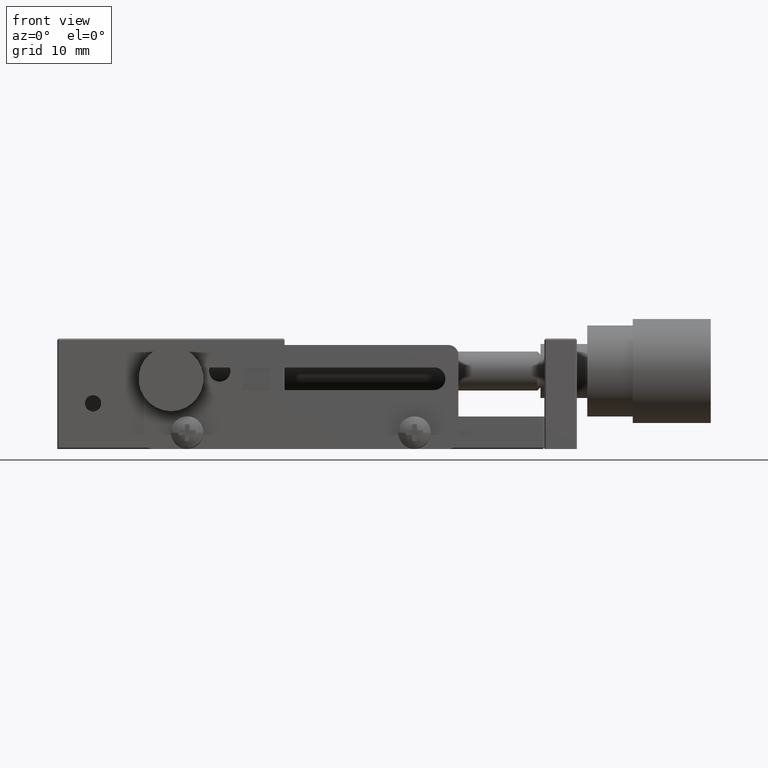
[diagram: clean part render]
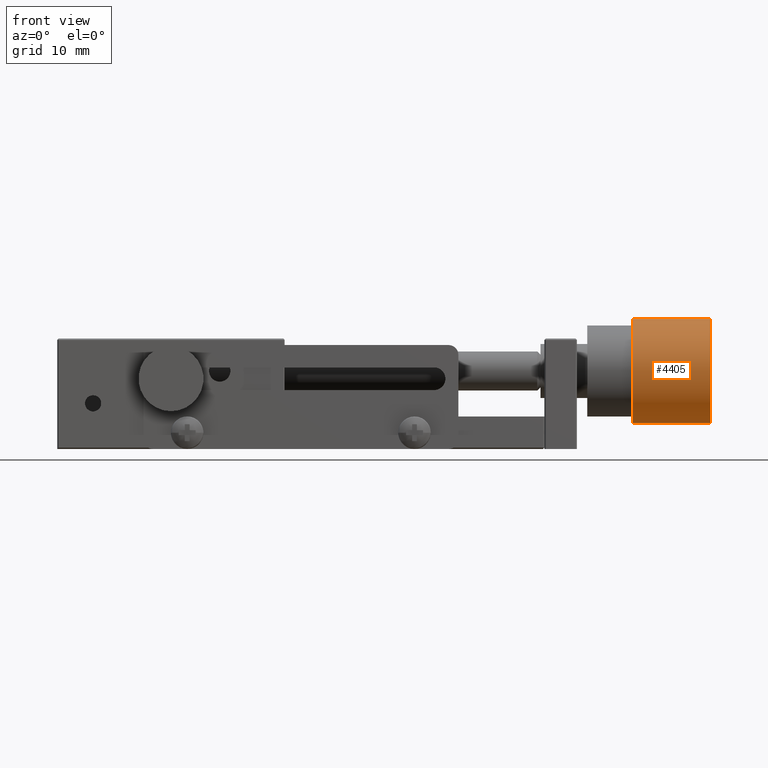
[diagram: same view with one face highlighted and labeled with its STEP entity id]
A machine part, front view. The second image highlights one B-rep face of the part: STEP entity #4405.
In plain terms, the highlighted cylindrical surface (partial cylindrical patch) has radius 8 mm, axis along (1, -0, 0).
Its self-contained STEP definition (entity closure, byte-faithful):
#33 = VERTEX_POINT ( 'NONE', #3880 ) ;
#120 = CIRCLE ( 'NONE', #3968, 7.999999999800619900 ) ;
#243 = LINE ( 'NONE', #4644, #2477 ) ;
#455 = DIRECTION ( 'NONE',  ( 0.0000000000000000000, 0.0000000000000000000, -1.000000000000000000 ) ) ;
#680 = DIRECTION ( 'NONE',  ( 0.0000000000000000000, 0.0000000000000000000, -1.000000000000000000 ) ) ;
#1012 = CARTESIAN_POINT ( 'NONE',  ( 51.10000000000000100, 1.588271697408757100E-040, 4.000000000199381000 ) ) ;
#1275 = AXIS2_PLACEMENT_3D ( 'NONE', #4462, #3651, #10456 ) ;
#1518 = CARTESIAN_POINT ( 'NONE',  ( 63.10000000000000100, -3.058934627885547600E-015, 12.00000000000000400 ) ) ;
#2477 = VECTOR ( 'NONE', #5491, 1000.000000000000000 ) ;
#2898 = FACE_OUTER_BOUND ( 'NONE', #4828, .T. ) ;
#3296 = ORIENTED_EDGE ( 'NONE', *, *, #5466, .F. ) ;
#3300 = LINE ( 'NONE', #4104, #9895 ) ;
#3511 = VERTEX_POINT ( 'NONE', #6424 ) ;
#3651 = DIRECTION ( 'NONE',  ( 1.000000000000000000, -2.549112189904622200E-016, 3.508551931691157400E-016 ) ) ;
#3678 = CARTESIAN_POINT ( 'NONE',  ( 51.10000000000000100, 1.588271697408757100E-040, 12.00000000000000000 ) ) ;
#3880 = CARTESIAN_POINT ( 'NONE',  ( 63.10000000000000100, -3.058934627885547600E-015, 4.000000000199383600 ) ) ;
#3968 = AXIS2_PLACEMENT_3D ( 'NONE', #1518, #6642, #680 ) ;
#4001 = DIRECTION ( 'NONE',  ( -1.000000000000000000, 2.549112189904622200E-016, -3.508551931691157400E-016 ) ) ;
#4034 = EDGE_CURVE ( 'NONE', #3511, #33, #120, .T. ) ;
#4104 = CARTESIAN_POINT ( 'NONE',  ( 51.10000000000000100, 9.797174392934655500E-016, 19.99999999980062200 ) ) ;
#4140 = DIRECTION ( 'NONE',  ( 1.000000000000000000, -2.549112189904622200E-016, 3.508551931691157400E-016 ) ) ;
#4381 = CARTESIAN_POINT ( 'NONE',  ( 51.10000000000000100, -5.497498746493066900E-016, 19.99999999980062200 ) ) ;
#4405 = ADVANCED_FACE ( 'NONE', ( #2898 ), #7220, .T. ) ;
#4462 = CARTESIAN_POINT ( 'NONE',  ( 51.10000000000000100, 0.0000000000000000000, 12.00000000000000000 ) ) ;
#4644 = CARTESIAN_POINT ( 'NONE',  ( 51.10000000000000100, 0.0000000000000000000, 4.000000000199381000 ) ) ;
#4709 = EDGE_CURVE ( 'NONE', #8085, #33, #243, .T. ) ;
#4828 = EDGE_LOOP ( 'NONE', ( #3296, #10618, #6857, #7610 ) ) ;
#4851 = CIRCLE ( 'NONE', #7835, 7.999999999800619900 ) ;
#5466 = EDGE_CURVE ( 'NONE', #6706, #3511, #3300, .T. ) ;
#5491 = DIRECTION ( 'NONE',  ( 1.000000000000000000, -2.549112189904622200E-016, 3.508551931691157400E-016 ) ) ;
#6424 = CARTESIAN_POINT ( 'NONE',  ( 63.10000000000000100, -5.497498746493062000E-016, 19.99999999980062200 ) ) ;
#6456 = EDGE_CURVE ( 'NONE', #8085, #6706, #4851, .T. ) ;
#6642 = DIRECTION ( 'NONE',  ( 1.000000000000000000, -2.549112189904622200E-016, 3.508551931691157400E-016 ) ) ;
#6706 = VERTEX_POINT ( 'NONE', #4381 ) ;
#6857 = ORIENTED_EDGE ( 'NONE', *, *, #4709, .T. ) ;
#7220 = CYLINDRICAL_SURFACE ( 'NONE', #1275, 7.999999999800619900 ) ;
#7610 = ORIENTED_EDGE ( 'NONE', *, *, #4034, .F. ) ;
#7835 = AXIS2_PLACEMENT_3D ( 'NONE', #3678, #4001, #455 ) ;
#8085 = VERTEX_POINT ( 'NONE', #1012 ) ;
#9895 = VECTOR ( 'NONE', #4140, 1000.000000000000000 ) ;
#10456 = DIRECTION ( 'NONE',  ( 0.0000000000000000000, 0.0000000000000000000, -1.000000000000000000 ) ) ;
#10618 = ORIENTED_EDGE ( 'NONE', *, *, #6456, .F. ) ;